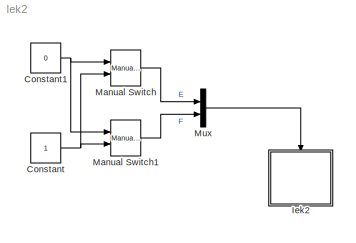
MODEL Iek2
KIND model
CONFIG AbsTol = auto
CONFIG FixedStep = auto
CONFIG MaxStep = auto
CONFIG MinStep = auto
CONFIG RelTol = 1e-3
CONFIG Solver = FixedStepDiscrete
CONFIG SolverMode = Auto
CONFIG StartTime = 0.0
CONFIG StopTime = 10000000.0
BLOCK [Constant] Constant
BLOCK [Constant] Constant1
  Value = 0
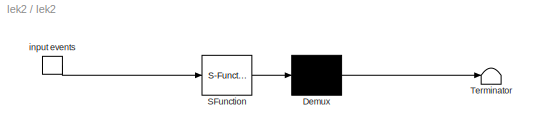
BLOCK [SubSystem] Iek2
  MaskDescription = Stateflow diagram
  MaskDisplay = plot(sf('Private','sfblk','xIcon'),sf('Private','sfblk','yIcon'));text(0.5,0,sf('Private', 'sfblk', 'tIcon'),'HorizontalAl','Center','VerticalAl','Bottom');
  MaskIconFrame = off
  MaskIconOpaque = off
  MaskIconRotate = none
  MaskIconUnits = autoscale
  MaskSelfModifiable = on
  MaskType = Stateflow
  Ports = [0, 0, 0, 1]
  TreatAsAtomicUnit = off
BLOCK [Demux] Iek2/ Demux 
  Outputs = 1
  Ports = [1, 1]
BLOCK [S-Function] Iek2/ SFunction 
  FunctionName = sf_sfun
  PortCounts = [1 1]
  Ports = [1, 1]
  Tag = Stateflow S-Function Iek2 1
BLOCK [Terminator] Iek2/ Terminator 
BLOCK [TriggerPort] Iek2/ input events 
  Ports = [0, 1]
  ShowOutputPort = on
  TriggerType = either
BLOCK [Reference] Manual Switch  REF=simulink/Signal\nRouting/Manual Switch
  Ports = [2, 1]
  SourceBlock = simulink/Signal\nRouting/Manual Switch
  SourceType = Manual Switch
  action = 0
  sw = 1
BLOCK [Reference] Manual Switch1  REF=simulink/Signal\nRouting/Manual Switch
  Ports = [2, 1]
  SourceBlock = simulink/Signal\nRouting/Manual Switch
  SourceType = Manual Switch
  action = 0
  sw = 1
BLOCK [Mux] Mux
  DisplayOption = bar
  Inputs = 2
  Ports = [2, 1]
NET Constant1:1 -> Manual Switch1:1, Manual Switch:1
NET Constant:1 -> Manual Switch1:2, Manual Switch:2
LINE Iek2/ Demux :1 -> Iek2/ Terminator :1
LINE Iek2/ SFunction :1 -> Iek2/ Demux :1
LINE Iek2/ input events :1 -> Iek2/ SFunction :1
LINE Manual Switch1:1 -> Mux:2
LINE Manual Switch:1 -> Mux:1
LINE Mux:1 -> Iek2:trigger
note: NET lines group one-source signal fan-out (src -> all destinations, sorted); 1:1 wires keep LINE
CHART Iek2 states=11 transitions=13
  STATE_LABEL 'T1'
  STATE_LABEL 'B'
  STATE_LABEL 'A'
  STATE_LABEL 'T2'
  STATE_LABEL 'C/\\nen: y++'
  STATE_LABEL 'D/\\nen: y++'
  STATE_LABEL 'T3'
  STATE_LABEL 'a'
  STATE_LABEL 'c'
  STATE_LABEL 'b'
  STATE_LABEL 'd'
